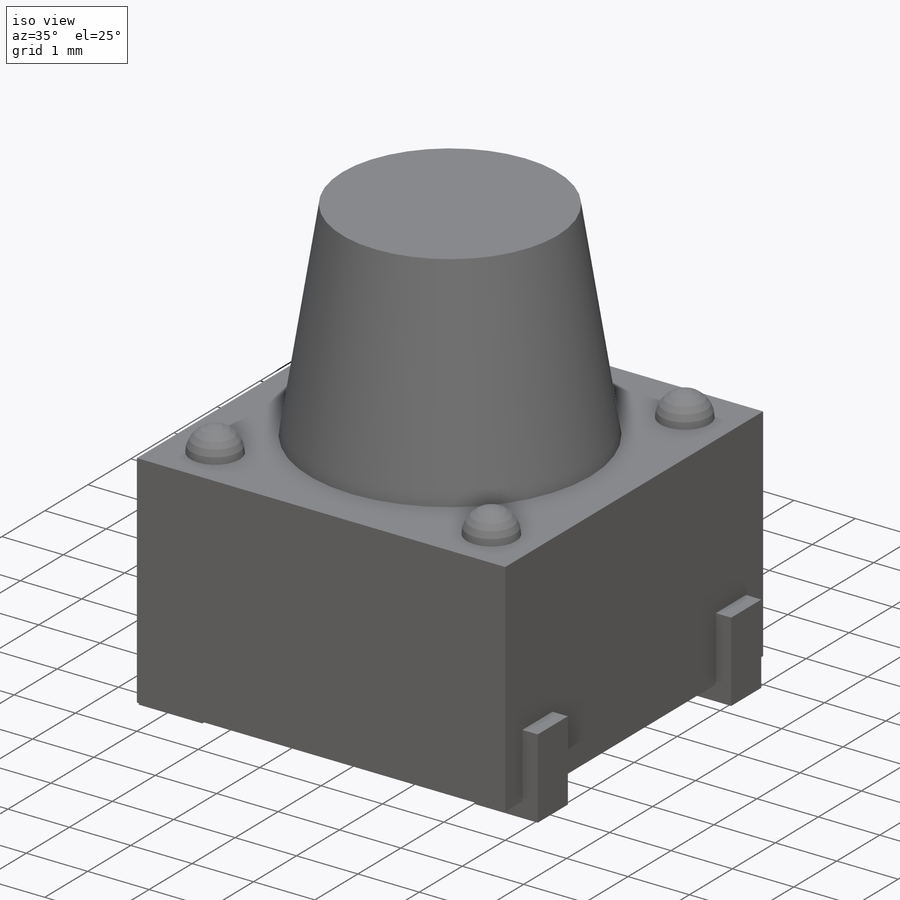
[diagram: iso view]
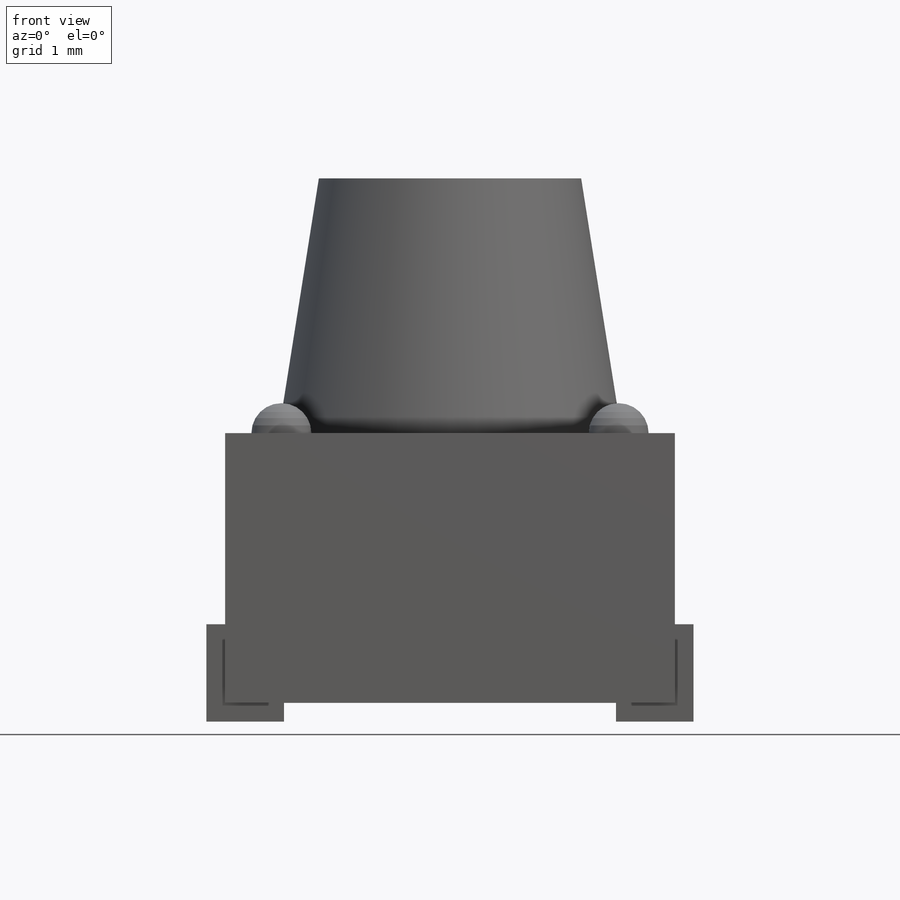
[diagram: front view]
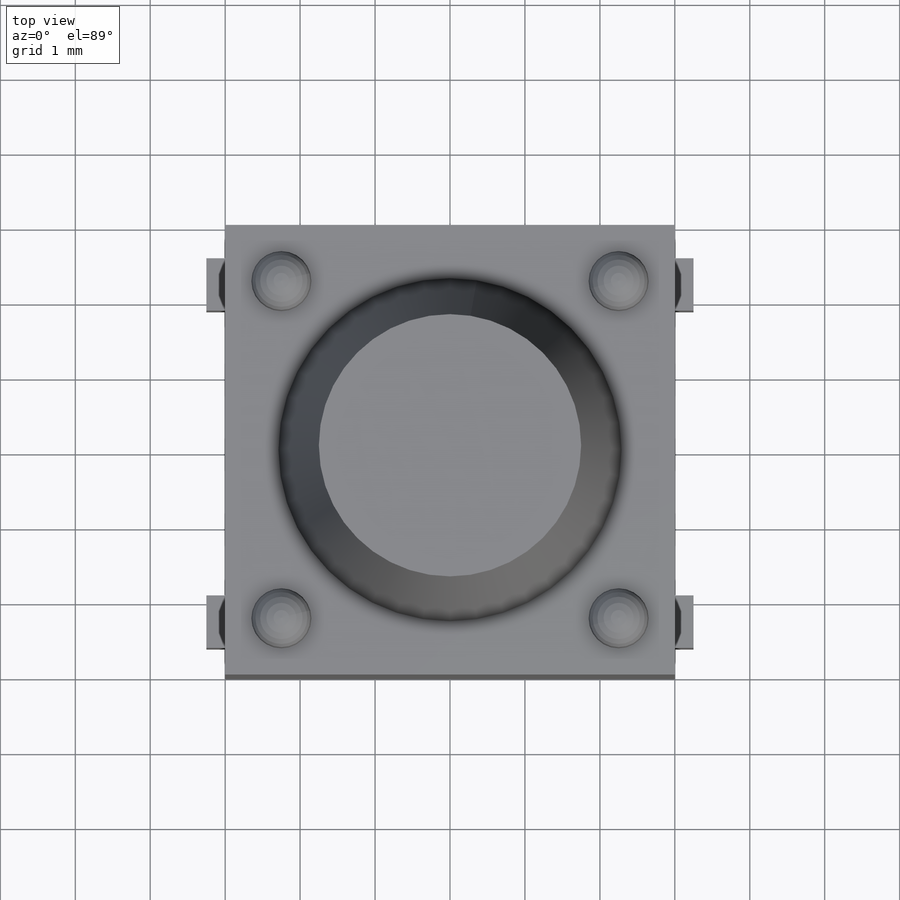
[diagram: top view]
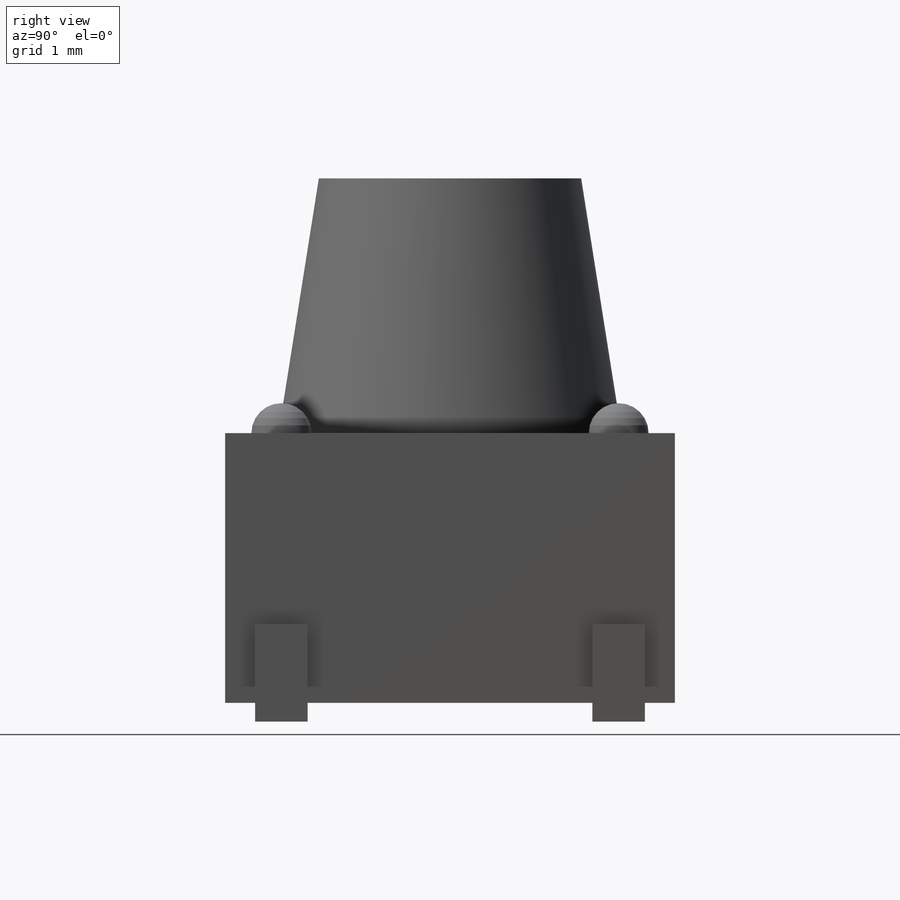
[diagram: right view]
SOLIDWORKS PART (.sldprt)
format: sldprt  version: not decoded by parser v0  size: 318,464 bytes
history: native  units: mm
features: sketch x4, mirror x4, extrude x2, revolve x2, material x1, plane x1 (+14 scaffold rows collapsed)
feature tree (28):
  scaffold x14  (default folders/planes/origin — collapsed)
  material  "Material <not specified>"
  sketch  "Sketch1"  dims[D1=6.0mm D2=6.0mm]
  extrude  "Extrude1"  Depth=3.6mm
  plane  "Plane1"  Offset=2.25mm
  sketch  "Sketch2"  dims[c1.D3=~0.374685mm c1.D1=4.5mm c1.D2=2.25mm c2.D3=0.4mm c2.D4=0.4mm]
  revolve  "Revolve1"  Angle=360deg
  mirror  "Mirror1"
  mirror  "Mirror2"
  sketch  "Sketch3"  dims[c1.D1=0.45mm c1.D2=~0.26119mm c2.D2=85.0deg c2.D1=7.0mm c2.D3=~1.788758mm c3.D2=1.75mm c3.D3=0.7mm c4.D3=~81.869898deg c5.D3=0.7mm c6.D3=81.0deg]
  revolve  "Revolve2"  Angle=360deg
  sketch  "Sketch5"  dims[c1.D2=0.1mm c1.D3=0.5mm c1.D4=8.4mm c2.D3=10.0mm c2.D5=0.8mm c2.D6=0.25mm c2.D2=0.25mm c3.D3=~0.488055mm c3.D1=0.25mm]
  extrude  "Extrude2"  Depth=0.7mm
  mirror  "Mirror3"
  mirror  "Mirror4"
decode coverage: 8 of 12 modeling features carry decoded parameters
note: ~ marks probable driven/reference dimensions
note: suppression state not decoded; provenance and decode notes live in map.json
